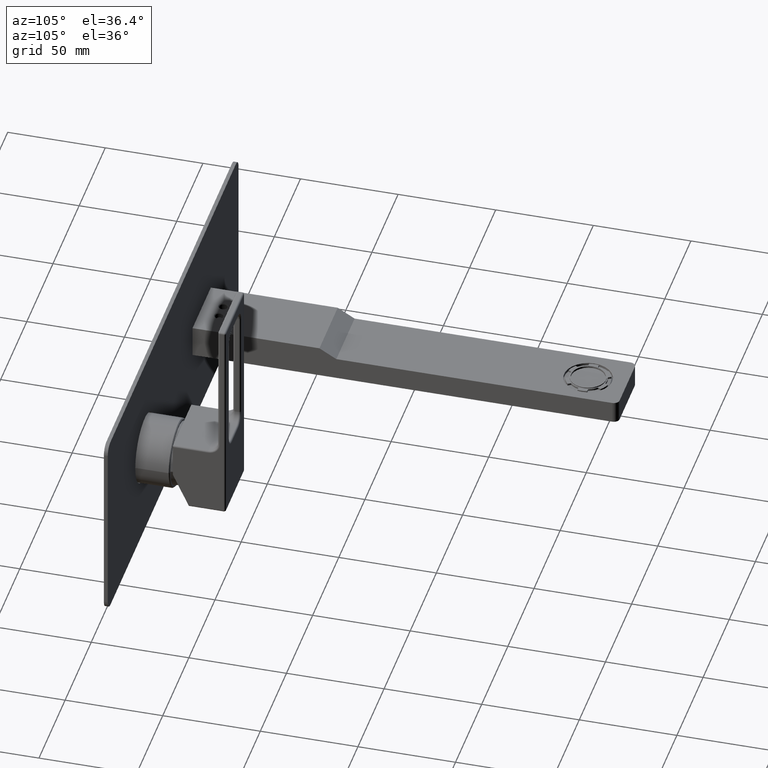
[diagram: clean part render]
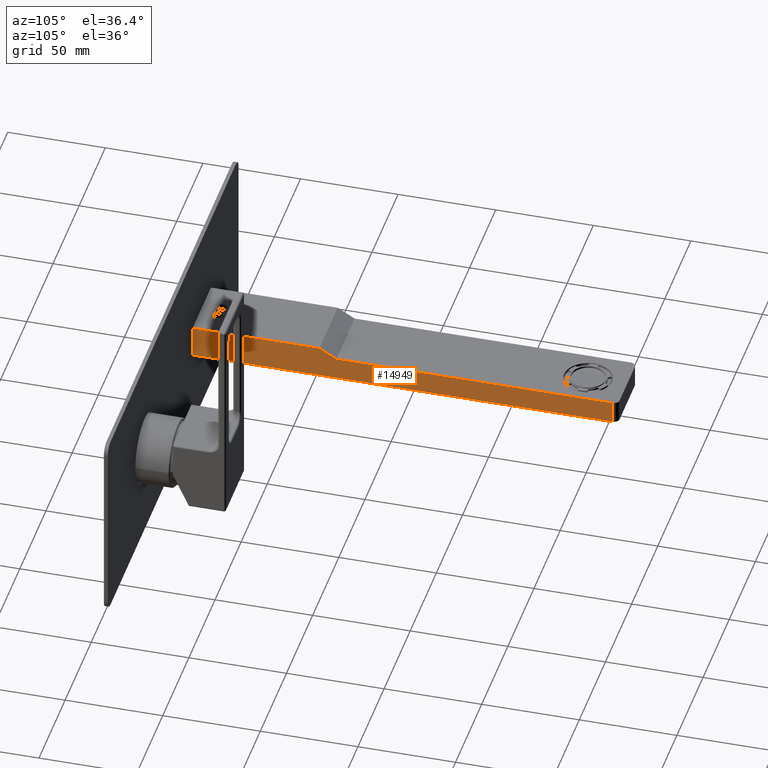
[diagram: same view with one face highlighted and labeled with its STEP entity id]
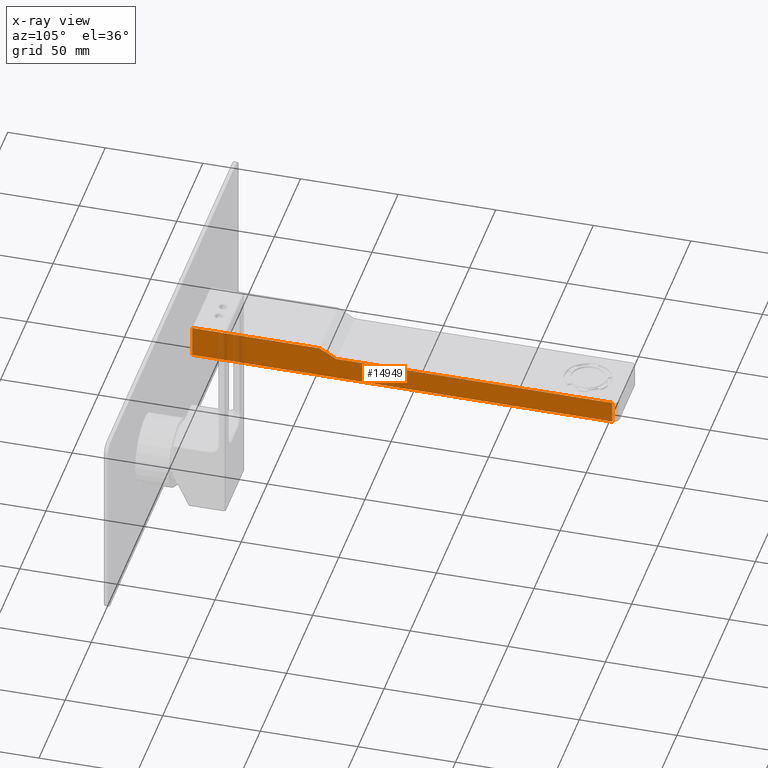
[diagram: x-ray of the same camera — body ghosted, the highlighted face saturated]
A machine part, auxiliary view. The second image highlights one B-rep face of the part: STEP entity #14949.
The next image is the same camera in x-ray: the body ghosted, the highlighted face saturated — about 6% of this face is hidden behind the body in this view.
In plain terms, the highlighted planar face has unit normal (1, 0, 0).
Its self-contained STEP definition (entity closure, byte-faithful):
#12828=DIRECTION('',(0.E0,-1.E0,0.E0));
#12829=VECTOR('',#12828,6.5E1);
#12830=CARTESIAN_POINT('',(1.75E1,1.18E2,8.25E0));
#12831=LINE('',#12830,#12829);
#12856=DIRECTION('',(0.E0,0.E0,-1.E0));
#12857=VECTOR('',#12856,1.65E1);
#12858=CARTESIAN_POINT('',(1.75E1,5.3E1,8.25E0));
#12859=LINE('',#12858,#12857);
#12860=DIRECTION('',(0.E0,8.660254037844E-1,-5.E-1));
#12861=VECTOR('',#12860,1.E1);
#12862=CARTESIAN_POINT('',(1.75E1,1.18E2,8.25E0));
#12863=LINE('',#12862,#12861);
#12864=DIRECTION('',(0.E0,-1.E0,0.E0));
#12865=VECTOR('',#12864,1.413397459622E2);
#12866=CARTESIAN_POINT('',(1.75E1,2.68E2,3.25E0));
#12867=LINE('',#12866,#12865);
#12868=DIRECTION('',(0.E0,0.E0,1.E0));
#12869=VECTOR('',#12868,1.15E1);
#12870=CARTESIAN_POINT('',(1.75E1,2.68E2,-8.25E0));
#12871=LINE('',#12870,#12869);
#12876=DIRECTION('',(0.E0,-1.E0,0.E0));
#12877=VECTOR('',#12876,2.15E2);
#12878=CARTESIAN_POINT('',(1.75E1,2.68E2,-8.25E0));
#12879=LINE('',#12878,#12877);
#13718=CARTESIAN_POINT('',(1.75E1,2.68E2,-8.25E0));
#13719=VERTEX_POINT('',#13718);
#13720=CARTESIAN_POINT('',(1.75E1,2.68E2,3.25E0));
#13721=VERTEX_POINT('',#13720);
#13765=CARTESIAN_POINT('',(1.75E1,1.18E2,8.25E0));
#13767=VERTEX_POINT('',#13765);
#13770=CARTESIAN_POINT('',(1.75E1,1.266602540378E2,3.25E0));
#13771=VERTEX_POINT('',#13770);
#13997=CARTESIAN_POINT('',(1.75E1,5.3E1,8.25E0));
#13999=VERTEX_POINT('',#13997);
#14001=CARTESIAN_POINT('',(1.75E1,5.3E1,-8.25E0));
#14003=VERTEX_POINT('',#14001);
#14935=CARTESIAN_POINT('',(1.75E1,2.71E2,8.25E0));
#14936=DIRECTION('',(1.E0,0.E0,0.E0));
#14937=DIRECTION('',(0.E0,-1.E0,0.E0));
#14938=AXIS2_PLACEMENT_3D('',#14935,#14936,#14937);
#14939=PLANE('',#14938);
#14940=ORIENTED_EDGE('',*,*,#14307,.F.);
#14941=ORIENTED_EDGE('',*,*,#14891,.F.);
#14942=ORIENTED_EDGE('',*,*,#14923,.T.);
#14943=ORIENTED_EDGE('',*,*,#14162,.F.);
#14944=ORIENTED_EDGE('',*,*,#14196,.F.);
#14946=ORIENTED_EDGE('',*,*,#14945,.T.);
#14947=EDGE_LOOP('',(#14940,#14941,#14942,#14943,#14944,#14946));
#14948=FACE_OUTER_BOUND('',#14947,.F.);
#14949=ADVANCED_FACE('',(#14948),#14939,.T.);
#14162=EDGE_CURVE('',#13721,#13771,#12867,.T.);
#14196=EDGE_CURVE('',#13719,#13721,#12871,.T.);
#14307=EDGE_CURVE('',#13999,#14003,#12859,.T.);
#14891=EDGE_CURVE('',#13767,#13999,#12831,.T.);
#14923=EDGE_CURVE('',#13767,#13771,#12863,.T.);
#14945=EDGE_CURVE('',#13719,#14003,#12879,.T.);